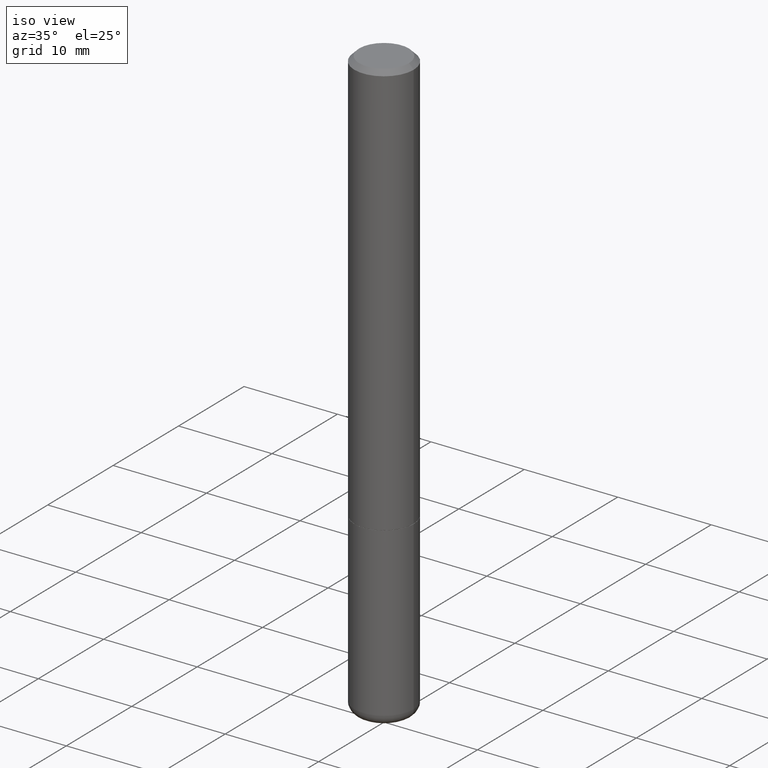
[diagram: clean part render]
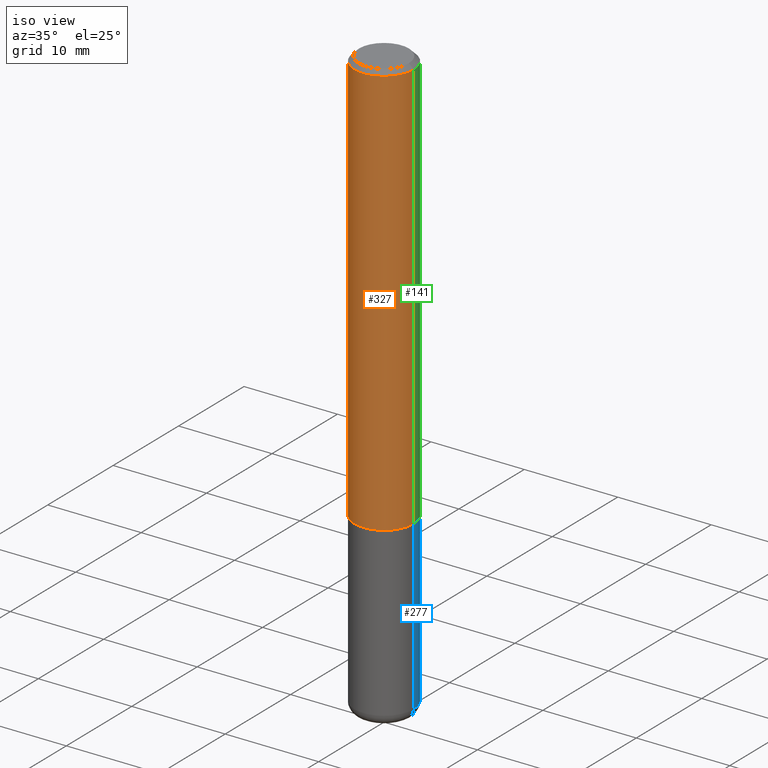
[diagram: same view with three faces highlighted in distinct colors, each labeled with its STEP entity id]
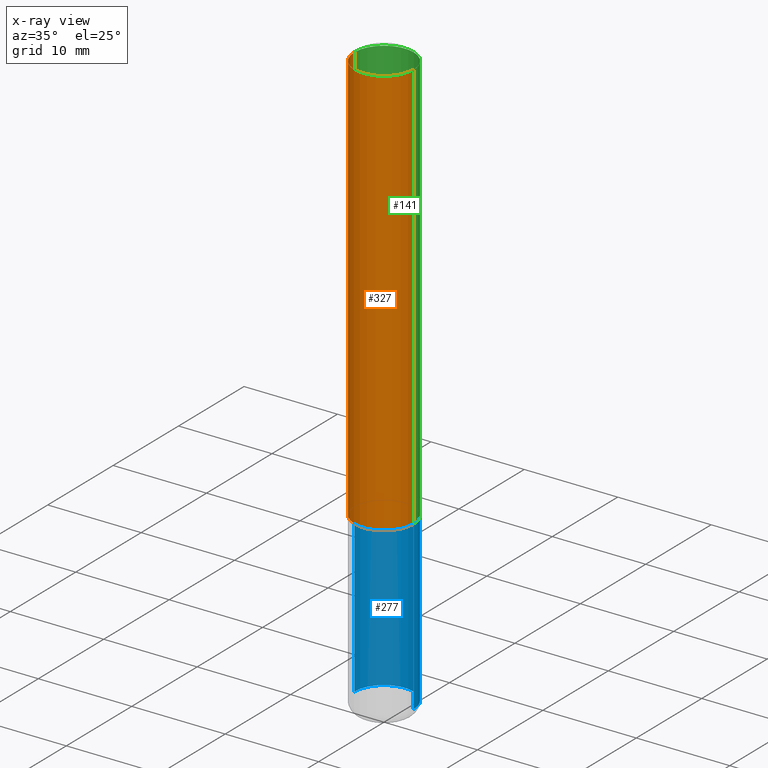
[diagram: x-ray of the same camera — body ghosted, the three highlighted faces saturated]
A machine part, iso view with three faces highlighted in distinct colors.
The next image is the same camera in x-ray (body ghosted, the three faces saturated) — at least one of them is partly hidden behind the body in this view.
Their STEP definitions:

[orange] entity #327 — the highlighted cylindrical surface (edge-blend (fillet) strip) has radius 3.175 mm, axis along (-0, 0, 1).
#1 = VERTEX_POINT ( 'NONE', #296 ) ;
#35 = ORIENTED_EDGE ( 'NONE', *, *, #72, .T. ) ;
#39 = EDGE_CURVE ( 'NONE', #40, #1, #262, .T. ) ;
#40 = VERTEX_POINT ( 'NONE', #63 ) ;
#63 = CARTESIAN_POINT ( 'NONE',  ( 0.1250000000000000000, -6.979471196347443425E-15, -1.748999999999999888 ) ) ;
#72 = EDGE_CURVE ( 'NONE', #213, #40, #382, .T. ) ;
#80 = FACE_OUTER_BOUND ( 'NONE', #408, .T. ) ;
#83 = DIRECTION ( 'NONE',  ( -2.445468806185136877E-29, 3.491481338843145188E-15, 1.000000000000000000 ) ) ;
#101 = AXIS2_PLACEMENT_3D ( 'NONE', #363, #147, #121 ) ;
#121 = DIRECTION ( 'NONE',  ( 1.000000000000000000, -6.982962677686266711E-15, 4.876176775795935793E-29 ) ) ;
#132 = VERTEX_POINT ( 'NONE', #160 ) ;
#136 = CARTESIAN_POINT ( 'NONE',  ( -0.1250000000000000278, -2.200036824506634093E-15, -1.748999999999999888 ) ) ;
#142 = LINE ( 'NONE', #244, #372 ) ;
#147 = DIRECTION ( 'NONE',  ( -2.445468806185136597E-29, 3.491481338843145583E-15, 1.000000000000000000 ) ) ;
#160 = CARTESIAN_POINT ( 'NONE',  ( -0.1249999999999997780, 8.030407079339188573E-16, -0.02000000000000000736 ) ) ;
#163 = CIRCLE ( 'NONE', #418, 0.1249999999999997780 ) ;
#197 = DIRECTION ( 'NONE',  ( -2.445468806185136877E-29, 3.491481338843145188E-15, 1.000000000000000000 ) ) ;
#202 = CARTESIAN_POINT ( 'NONE',  ( 4.890937612370274910E-31, -6.982962677686295307E-17, -0.02000000000000000736 ) ) ;
#213 = VERTEX_POINT ( 'NONE', #136 ) ;
#222 = ORIENTED_EDGE ( 'NONE', *, *, #39, .T. ) ;
#224 = EDGE_CURVE ( 'NONE', #132, #1, #163, .T. ) ;
#237 = ORIENTED_EDGE ( 'NONE', *, *, #403, .F. ) ;
#244 = CARTESIAN_POINT ( 'NONE',  ( -0.1249999999999999029, 8.881784197001245421E-16, -6.148668862818627323E-30 ) ) ;
#262 = LINE ( 'NONE', #401, #378 ) ;
#267 = CARTESIAN_POINT ( 'NONE',  ( 4.277124942017804002E-29, -6.106600861636660875E-15, -1.748999999999999888 ) ) ;
#272 = DIRECTION ( 'NONE',  ( -2.445468806185136597E-29, 3.491481338843145583E-15, 1.000000000000000000 ) ) ;
#289 = CYLINDRICAL_SURFACE ( 'NONE', #101, 0.1249999999999999029 ) ;
#296 = CARTESIAN_POINT ( 'NONE',  ( 0.1249999999999997780, -9.273918764983027713E-16, -0.02000000000000000736 ) ) ;
#317 = ORIENTED_EDGE ( 'NONE', *, *, #224, .F. ) ;
#320 = AXIS2_PLACEMENT_3D ( 'NONE', #267, #376, #337 ) ;
#327 = ADVANCED_FACE ( 'NONE', ( #80 ), #289, .T. ) ;
#337 = DIRECTION ( 'NONE',  ( 1.000000000000000000, -6.982962677686262766E-15, 0.000000000000000000 ) ) ;
#363 = CARTESIAN_POINT ( 'NONE',  ( 0.000000000000000000, 0.000000000000000000, 0.000000000000000000 ) ) ;
#372 = VECTOR ( 'NONE', #83, 39.37007874015748143 ) ;
#376 = DIRECTION ( 'NONE',  ( -2.445468806185136597E-29, 3.491481338843145583E-15, 1.000000000000000000 ) ) ;
#378 = VECTOR ( 'NONE', #197, 39.37007874015748143 ) ;
#382 = CIRCLE ( 'NONE', #320, 0.1250000000000000000 ) ;
#401 = CARTESIAN_POINT ( 'NONE',  ( 0.1249999999999999029, -8.728703347107826486E-16, 6.095220969744914837E-30 ) ) ;
#403 = EDGE_CURVE ( 'NONE', #213, #132, #142, .T. ) ;
#408 = EDGE_LOOP ( 'NONE', ( #237, #35, #222, #317 ) ) ;
#416 = DIRECTION ( 'NONE',  ( 1.000000000000000000, -6.982962677686266711E-15, 0.000000000000000000 ) ) ;
#418 = AXIS2_PLACEMENT_3D ( 'NONE', #202, #272, #416 ) ;

[blue] entity #277 — the highlighted cylindrical surface (edge-blend (fillet) strip) has radius 3.175 mm, axis along (-0, 0, 1).
#20 = ORIENTED_EDGE ( 'NONE', *, *, #47, .T. ) ;
#47 = EDGE_CURVE ( 'NONE', #344, #318, #172, .T. ) ;
#57 = CIRCLE ( 'NONE', #314, 0.1250000000000000000 ) ;
#67 = EDGE_CURVE ( 'NONE', #357, #344, #57, .T. ) ;
#69 = VECTOR ( 'NONE', #269, 39.37007874015748143 ) ;
#78 = ORIENTED_EDGE ( 'NONE', *, *, #67, .T. ) ;
#84 = DIRECTION ( 'NONE',  ( 1.000000000000000000, -6.982962677686266711E-15, 4.876176775795935793E-29 ) ) ;
#85 = AXIS2_PLACEMENT_3D ( 'NONE', #99, #206, #345 ) ;
#92 = CARTESIAN_POINT ( 'NONE',  ( 0.1250000000000000000, -6.982962677686288010E-15, -1.750000000000000222 ) ) ;
#99 = CARTESIAN_POINT ( 'NONE',  ( 4.279570410823989044E-29, -6.110092342975505460E-15, -1.750000000000000222 ) ) ;
#110 = VERTEX_POINT ( 'NONE', #92 ) ;
#114 = CARTESIAN_POINT ( 'NONE',  ( 0.000000000000000000, 0.000000000000000000, 0.000000000000000000 ) ) ;
#137 = VECTOR ( 'NONE', #279, 39.37007874015748143 ) ;
#162 = EDGE_LOOP ( 'NONE', ( #78, #20, #216, #329 ) ) ;
#172 = LINE ( 'NONE', #235, #69 ) ;
#173 = CIRCLE ( 'NONE', #85, 0.1250000000000000000 ) ;
#201 = DIRECTION ( 'NONE',  ( -2.445468806185136597E-29, 3.491481338843145583E-15, 1.000000000000000000 ) ) ;
#206 = DIRECTION ( 'NONE',  ( -2.445468806185136597E-29, 3.491481338843145583E-15, 1.000000000000000000 ) ) ;
#214 = CYLINDRICAL_SURFACE ( 'NONE', #434, 0.1250000000000000000 ) ;
#216 = ORIENTED_EDGE ( 'NONE', *, *, #243, .F. ) ;
#221 = CARTESIAN_POINT ( 'NONE',  ( 0.1250000000000000000, -8.728703347107833388E-16, 6.095220969744919741E-30 ) ) ;
#235 = CARTESIAN_POINT ( 'NONE',  ( -0.1250000000000000000, 8.881784197001252323E-16, -6.148668862818632227E-30 ) ) ;
#243 = EDGE_CURVE ( 'NONE', #110, #318, #173, .T. ) ;
#250 = DIRECTION ( 'NONE',  ( -2.445468806185136597E-29, 3.491481338843145583E-15, 1.000000000000000000 ) ) ;
#269 = DIRECTION ( 'NONE',  ( -2.445468806185136877E-29, 3.491481338843145188E-15, 1.000000000000000000 ) ) ;
#277 = ADVANCED_FACE ( 'NONE', ( #386 ), #214, .T. ) ;
#279 = DIRECTION ( 'NONE',  ( -2.445468806185136877E-29, 3.491481338843145188E-15, 1.000000000000000000 ) ) ;
#283 = CARTESIAN_POINT ( 'NONE',  ( 0.1250000000000000000, -9.444672344493053593E-15, -2.455061670936044216 ) ) ;
#314 = AXIS2_PLACEMENT_3D ( 'NONE', #371, #201, #404 ) ;
#318 = VERTEX_POINT ( 'NONE', #361 ) ;
#329 = ORIENTED_EDGE ( 'NONE', *, *, #421, .F. ) ;
#344 = VERTEX_POINT ( 'NONE', #436 ) ;
#345 = DIRECTION ( 'NONE',  ( 1.000000000000000000, -6.982962677686262766E-15, 0.000000000000000000 ) ) ;
#357 = VERTEX_POINT ( 'NONE', #283 ) ;
#361 = CARTESIAN_POINT ( 'NONE',  ( -0.1250000000000000000, -6.452768756678761836E-15, -1.750000000000000222 ) ) ;
#371 = CARTESIAN_POINT ( 'NONE',  ( 6.003776733534854503E-29, -8.571802009782270255E-15, -2.455061670936044216 ) ) ;
#386 = FACE_OUTER_BOUND ( 'NONE', #162, .T. ) ;
#404 = DIRECTION ( 'NONE',  ( 1.000000000000000000, -6.982962677686270655E-15, 0.000000000000000000 ) ) ;
#421 = EDGE_CURVE ( 'NONE', #357, #110, #429, .T. ) ;
#429 = LINE ( 'NONE', #221, #137 ) ;
#434 = AXIS2_PLACEMENT_3D ( 'NONE', #114, #250, #84 ) ;
#436 = CARTESIAN_POINT ( 'NONE',  ( -0.1250000000000000000, -6.452768756678761836E-15, -2.455061670936044216 ) ) ;

[green] entity #141 — the highlighted cylindrical surface (edge-blend (fillet) strip) has radius 3.175 mm, axis along (-0, 0, 1).
#1 = VERTEX_POINT ( 'NONE', #296 ) ;
#18 = CARTESIAN_POINT ( 'NONE',  ( 0.000000000000000000, 0.000000000000000000, 0.000000000000000000 ) ) ;
#39 = EDGE_CURVE ( 'NONE', #40, #1, #262, .T. ) ;
#40 = VERTEX_POINT ( 'NONE', #63 ) ;
#53 = CARTESIAN_POINT ( 'NONE',  ( 4.890937612370274910E-31, -6.982962677686295307E-17, -0.02000000000000000736 ) ) ;
#63 = CARTESIAN_POINT ( 'NONE',  ( 0.1250000000000000000, -6.979471196347443425E-15, -1.748999999999999888 ) ) ;
#83 = DIRECTION ( 'NONE',  ( -2.445468806185136877E-29, 3.491481338843145188E-15, 1.000000000000000000 ) ) ;
#98 = DIRECTION ( 'NONE',  ( -2.445468806185136597E-29, 3.491481338843145583E-15, 1.000000000000000000 ) ) ;
#104 = DIRECTION ( 'NONE',  ( -2.445468806185136597E-29, 3.491481338843145583E-15, 1.000000000000000000 ) ) ;
#117 = DIRECTION ( 'NONE',  ( 1.000000000000000000, -6.982962677686266711E-15, 0.000000000000000000 ) ) ;
#132 = VERTEX_POINT ( 'NONE', #160 ) ;
#136 = CARTESIAN_POINT ( 'NONE',  ( -0.1250000000000000278, -2.200036824506634093E-15, -1.748999999999999888 ) ) ;
#141 = ADVANCED_FACE ( 'NONE', ( #379 ), #209, .T. ) ;
#142 = LINE ( 'NONE', #244, #372 ) ;
#160 = CARTESIAN_POINT ( 'NONE',  ( -0.1249999999999997780, 8.030407079339188573E-16, -0.02000000000000000736 ) ) ;
#164 = CIRCLE ( 'NONE', #422, 0.1249999999999997780 ) ;
#197 = DIRECTION ( 'NONE',  ( -2.445468806185136877E-29, 3.491481338843145188E-15, 1.000000000000000000 ) ) ;
#209 = CYLINDRICAL_SURFACE ( 'NONE', #373, 0.1249999999999999029 ) ;
#212 = DIRECTION ( 'NONE',  ( 1.000000000000000000, -6.982962677686266711E-15, 4.876176775795935793E-29 ) ) ;
#213 = VERTEX_POINT ( 'NONE', #136 ) ;
#219 = DIRECTION ( 'NONE',  ( 1.000000000000000000, -6.982962677686262766E-15, 0.000000000000000000 ) ) ;
#220 = ORIENTED_EDGE ( 'NONE', *, *, #384, .T. ) ;
#227 = AXIS2_PLACEMENT_3D ( 'NONE', #397, #98, #219 ) ;
#241 = ORIENTED_EDGE ( 'NONE', *, *, #403, .T. ) ;
#244 = CARTESIAN_POINT ( 'NONE',  ( -0.1249999999999999029, 8.881784197001245421E-16, -6.148668862818627323E-30 ) ) ;
#253 = ORIENTED_EDGE ( 'NONE', *, *, #39, .F. ) ;
#262 = LINE ( 'NONE', #401, #378 ) ;
#296 = CARTESIAN_POINT ( 'NONE',  ( 0.1249999999999997780, -9.273918764983027713E-16, -0.02000000000000000736 ) ) ;
#315 = ORIENTED_EDGE ( 'NONE', *, *, #375, .F. ) ;
#326 = DIRECTION ( 'NONE',  ( -2.445468806185136597E-29, 3.491481338843145583E-15, 1.000000000000000000 ) ) ;
#372 = VECTOR ( 'NONE', #83, 39.37007874015748143 ) ;
#373 = AXIS2_PLACEMENT_3D ( 'NONE', #18, #104, #212 ) ;
#375 = EDGE_CURVE ( 'NONE', #1, #132, #164, .T. ) ;
#378 = VECTOR ( 'NONE', #197, 39.37007874015748143 ) ;
#379 = FACE_OUTER_BOUND ( 'NONE', #432, .T. ) ;
#384 = EDGE_CURVE ( 'NONE', #40, #213, #419, .T. ) ;
#397 = CARTESIAN_POINT ( 'NONE',  ( 4.277124942017804002E-29, -6.106600861636660875E-15, -1.748999999999999888 ) ) ;
#401 = CARTESIAN_POINT ( 'NONE',  ( 0.1249999999999999029, -8.728703347107826486E-16, 6.095220969744914837E-30 ) ) ;
#403 = EDGE_CURVE ( 'NONE', #213, #132, #142, .T. ) ;
#419 = CIRCLE ( 'NONE', #227, 0.1250000000000000000 ) ;
#422 = AXIS2_PLACEMENT_3D ( 'NONE', #53, #326, #117 ) ;
#432 = EDGE_LOOP ( 'NONE', ( #220, #241, #315, #253 ) ) ;